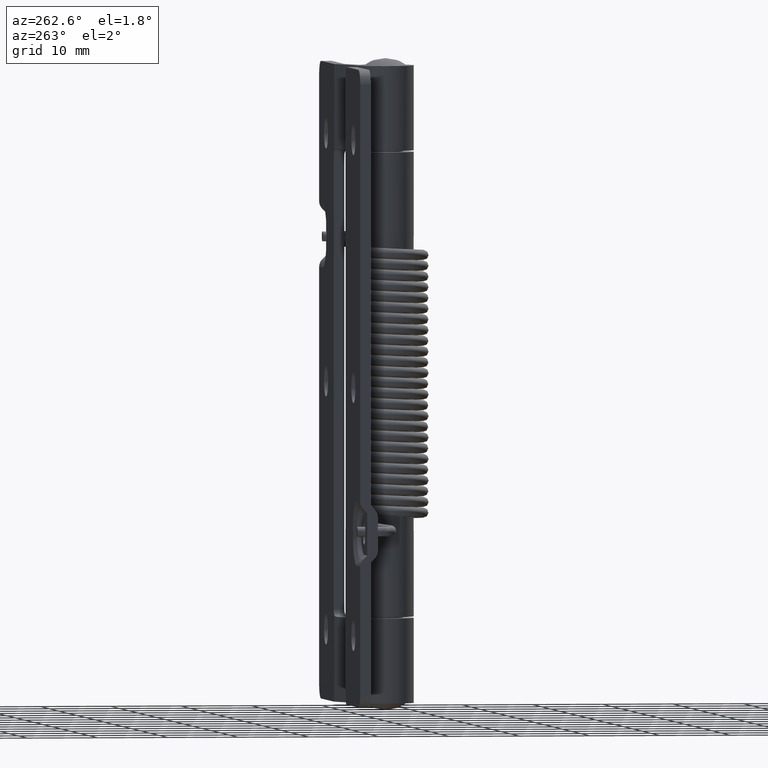
[diagram: clean part render]
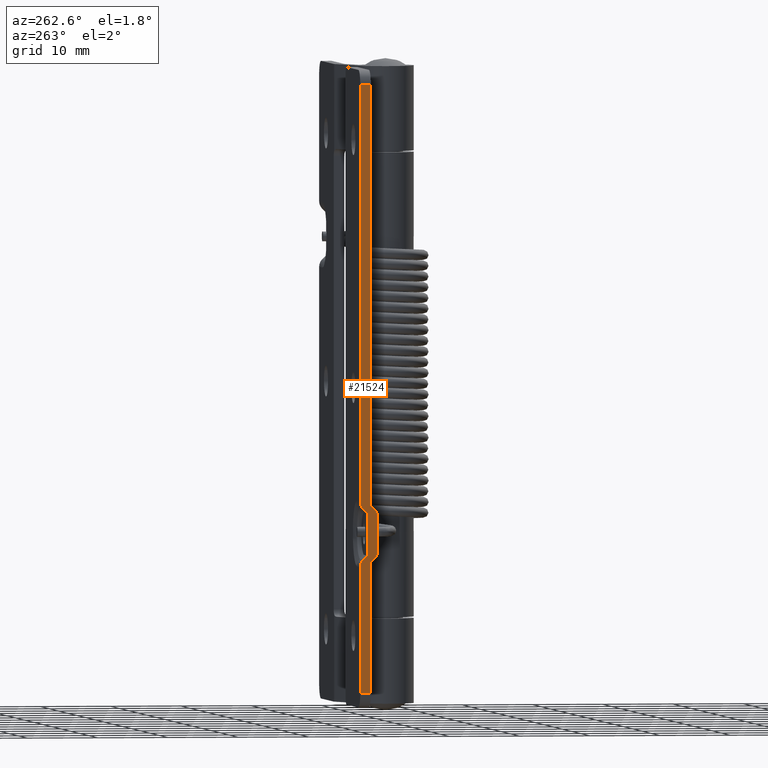
[diagram: same view with one face highlighted and labeled with its STEP entity id]
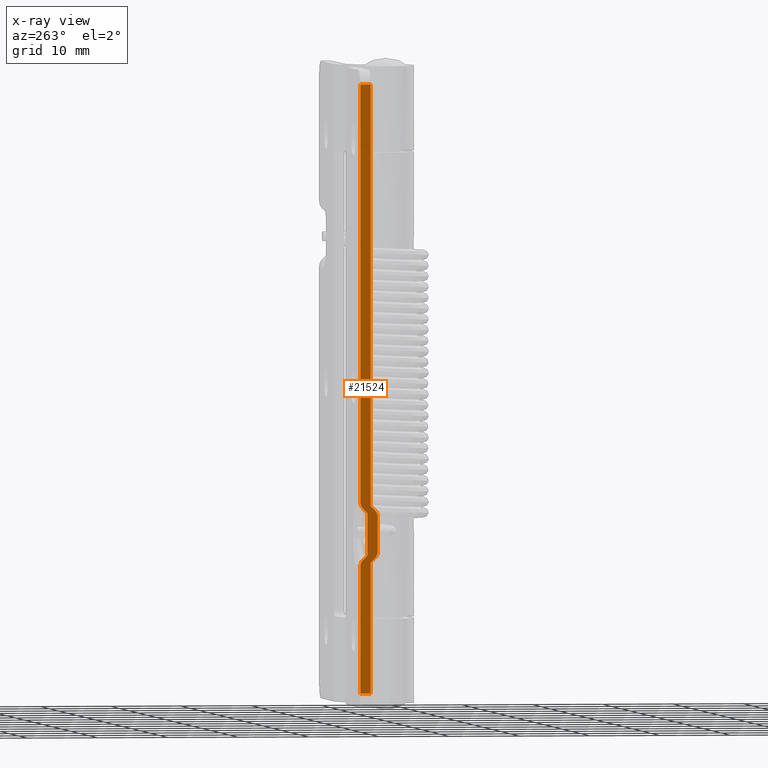
[diagram: x-ray of the same camera — body ghosted, the highlighted face saturated]
A machine part, auxiliary view. The second image highlights one B-rep face of the part: STEP entity #21524.
The next image is the same camera in x-ray: the body ghosted, the highlighted face saturated — about 0% of this face is hidden behind the body in this view.
In plain terms, the highlighted face is a freeform B-spline surface patch.
Its self-contained STEP definition (entity closure, byte-faithful):
#20238=CARTESIAN_POINT('',(-22.499999999999599,5.0,88.0));
#20239=VERTEX_POINT('',#20238);
#20240=CARTESIAN_POINT('',(-22.499999999999599,5.0,28.500000000000401));
#20241=VERTEX_POINT('',#20240);
#20242=CARTESIAN_POINT('',(-22.499999999999599,5.0,88.0));
#20243=CARTESIAN_POINT('',(-22.499999999999599,5.0,28.500000000000401));
#20244=QUASI_UNIFORM_CURVE('',1,(#20242,#20243),.UNSPECIFIED.,.F.,.U.);
#20245=EDGE_CURVE('',#20239,#20241,#20244,.T.);
#20286=CARTESIAN_POINT('',(-22.499999999982549,5.0,20.500000000001101));
#20287=VERTEX_POINT('',#20286);
#20293=CARTESIAN_POINT('',(-22.499999999999599,5.0,2.0));
#20294=VERTEX_POINT('',#20293);
#20295=CARTESIAN_POINT('',(-22.499999999982549,5.0,20.500000000001101));
#20296=CARTESIAN_POINT('',(-22.499999999999599,5.0,2.0));
#20297=QUASI_UNIFORM_CURVE('',1,(#20295,#20296),.UNSPECIFIED.,.F.,.U.);
#20298=EDGE_CURVE('',#20287,#20294,#20297,.T.);
#20436=CARTESIAN_POINT('',(-22.499999999999599,6.500000000000000,19.878679656441399));
#20437=VERTEX_POINT('',#20436);
#20443=CARTESIAN_POINT('',(-22.499999999999599,6.060660171779860,20.939339828221350));
#20444=VERTEX_POINT('',#20443);
#20445=CARTESIAN_POINT('',(-22.499999999999599,6.060660171779860,20.939339828221350));
#20446=CARTESIAN_POINT('',(-22.499999999999599,6.164836928495435,20.835245882613439));
#20447=CARTESIAN_POINT('',(-22.499999999999591,6.327336598414628,20.615990362726219));
#20448=CARTESIAN_POINT('',(-22.499999999999609,6.469714001137285,20.246823225250239));
#20449=CARTESIAN_POINT('',(-22.499999999999599,6.500031804187120,20.001404309600641));
#20450=CARTESIAN_POINT('',(-22.499999999999599,6.500000000000000,19.878679656441399));
#20451=B_SPLINE_CURVE_WITH_KNOTS('',3,(#20445,#20446,#20447,#20448,#20449,#20450),.UNSPECIFIED.,.F.,.U.,(4,1,1,4),(0.000000050564580,0.441797869178600,0.809957212502705,1.178126807976310),.UNSPECIFIED.);
#20452=EDGE_CURVE('',#20444,#20437,#20451,.T.);
#20570=CARTESIAN_POINT('',(-22.499999999999599,6.500000000000000,29.121320343558651));
#20571=VERTEX_POINT('',#20570);
#20572=CARTESIAN_POINT('',(-22.499999999999599,6.060660171779860,28.060660171778800));
#20573=VERTEX_POINT('',#20572);
#20574=CARTESIAN_POINT('',(-22.499999999999599,6.500000000000000,29.121320343558651));
#20575=CARTESIAN_POINT('',(-22.499999999999570,6.500140893072416,28.937219311553878));
#20576=CARTESIAN_POINT('',(-22.499999999999659,6.426779287355892,28.544647558319920));
#20577=CARTESIAN_POINT('',(-22.499999999999570,6.208387910986555,28.208015990222151));
#20578=CARTESIAN_POINT('',(-22.499999999999599,6.060660171779860,28.060660171778800));
#20579=B_SPLINE_CURVE_WITH_KNOTS('',3,(#20574,#20575,#20576,#20577,#20578),.UNSPECIFIED.,.F.,.U.,(4,1,4),(0.000000050564466,0.552260114727602,1.178126807976221),.UNSPECIFIED.);
#20580=EDGE_CURVE('',#20571,#20573,#20579,.T.);
#20610=CARTESIAN_POINT('',(-22.499999999999599,4.439339828220220,21.060660171780949));
#20611=VERTEX_POINT('',#20610);
#20612=CARTESIAN_POINT('',(-22.499999999982549,4.000000000000116,22.121320343560701));
#20613=VERTEX_POINT('',#20612);
#20614=CARTESIAN_POINT('',(-22.499999999999599,4.439339828220220,21.060660171780949));
#20615=CARTESIAN_POINT('',(-22.500000000001911,4.326481520392703,21.173419960675741));
#20616=CARTESIAN_POINT('',(-22.500000000003229,4.093553253310001,21.495835200638702));
#20617=CARTESIAN_POINT('',(-22.499999999992351,3.999553333852331,21.888059440800060));
#20618=CARTESIAN_POINT('',(-22.499999999982549,4.000000000000116,22.121320343560701));
#20619=B_SPLINE_CURVE_WITH_KNOTS('',3,(#20614,#20615,#20616,#20617,#20618),.UNSPECIFIED.,.F.,.U.,(4,1,4),(0.000000050565509,0.478623091477944,1.178126807976106),.UNSPECIFIED.);
#20620=EDGE_CURVE('',#20611,#20613,#20619,.T.);
#20754=CARTESIAN_POINT('',(-22.499999999982499,4.000000000000116,26.878679656439399));
#20755=VERTEX_POINT('',#20754);
#20756=CARTESIAN_POINT('',(-22.499999999999599,4.439339828220220,27.939339828219200));
#20757=VERTEX_POINT('',#20756);
#20758=CARTESIAN_POINT('',(-22.499999999982499,4.000000000000116,26.878679656439399));
#20759=CARTESIAN_POINT('',(-22.499999999988209,3.999726251335322,27.087338010095511));
#20760=CARTESIAN_POINT('',(-22.499999999996799,4.083358231714475,27.479790419408982));
#20761=CARTESIAN_POINT('',(-22.499999999999581,4.309056879014838,27.809261966360410));
#20762=CARTESIAN_POINT('',(-22.499999999999599,4.439339828220220,27.939339828219200));
#20763=B_SPLINE_CURVE_WITH_KNOTS('',3,(#20758,#20759,#20760,#20761,#20762),.UNSPECIFIED.,.F.,.U.,(4,1,4),(0.000000050564866,0.625866743813255,1.178126807976149),.UNSPECIFIED.);
#20764=EDGE_CURVE('',#20755,#20757,#20763,.T.);
#20785=CARTESIAN_POINT('',(-22.499999999982499,5.500000000000000,27.499999999999002));
#20786=VERTEX_POINT('',#20785);
#20787=CARTESIAN_POINT('',(-22.499999999999599,6.060660171779860,28.060660171778800));
#20788=CARTESIAN_POINT('',(-22.499999999982499,5.500000000000000,27.499999999999002));
#20789=QUASI_UNIFORM_CURVE('',1,(#20787,#20788),.UNSPECIFIED.,.F.,.U.);
#20790=EDGE_CURVE('',#20573,#20786,#20789,.T.);
#20873=CARTESIAN_POINT('',(-22.499999999982549,5.500000000000000,21.500000000001101));
#20874=VERTEX_POINT('',#20873);
#20875=CARTESIAN_POINT('',(-22.499999999982549,5.500000000000000,21.500000000001101));
#20876=CARTESIAN_POINT('',(-22.499999999999599,6.060660171779860,20.939339828221350));
#20877=QUASI_UNIFORM_CURVE('',1,(#20875,#20876),.UNSPECIFIED.,.F.,.U.);
#20878=EDGE_CURVE('',#20874,#20444,#20877,.T.);
#20893=CARTESIAN_POINT('',(-22.499999999982549,5.500000000000000,21.500000000001101));
#20894=CARTESIAN_POINT('',(-22.499999999982499,5.500000000000000,27.499999999999002));
#20895=QUASI_UNIFORM_CURVE('',1,(#20893,#20894),.UNSPECIFIED.,.F.,.U.);
#20896=EDGE_CURVE('',#20874,#20786,#20895,.T.);
#20924=CARTESIAN_POINT('',(-22.499999999982549,5.0,20.500000000001101));
#20925=CARTESIAN_POINT('',(-22.499999999999599,4.439339828220220,21.060660171780949));
#20926=QUASI_UNIFORM_CURVE('',1,(#20924,#20925),.UNSPECIFIED.,.F.,.U.);
#20927=EDGE_CURVE('',#20287,#20611,#20926,.T.);
#20969=CARTESIAN_POINT('',(-22.499999999999599,4.439339828220220,27.939339828219200));
#20970=CARTESIAN_POINT('',(-22.499999999999599,5.0,28.500000000000401));
#20971=QUASI_UNIFORM_CURVE('',1,(#20969,#20970),.UNSPECIFIED.,.F.,.U.);
#20972=EDGE_CURVE('',#20757,#20241,#20971,.T.);
#20985=CARTESIAN_POINT('',(-22.499999999982549,4.000000000000116,22.121320343560701));
#20986=CARTESIAN_POINT('',(-22.499999999982499,4.000000000000116,26.878679656439399));
#20987=QUASI_UNIFORM_CURVE('',1,(#20985,#20986),.UNSPECIFIED.,.F.,.U.);
#20988=EDGE_CURVE('',#20613,#20755,#20987,.T.);
#21291=CARTESIAN_POINT('',(-22.499999999999599,6.500000000000000,2.0));
#21292=VERTEX_POINT('',#21291);
#21311=CARTESIAN_POINT('',(-22.499999999999599,6.500000000000000,2.0));
#21312=CARTESIAN_POINT('',(-22.499999999999599,5.0,2.0));
#21313=QUASI_UNIFORM_CURVE('',1,(#21311,#21312),.UNSPECIFIED.,.F.,.U.);
#21314=EDGE_CURVE('',#21292,#20294,#21313,.T.);
#21333=CARTESIAN_POINT('',(-22.499999999999599,6.500000000000000,88.0));
#21334=VERTEX_POINT('',#21333);
#21349=CARTESIAN_POINT('',(-22.499999999999599,5.0,88.0));
#21350=CARTESIAN_POINT('',(-22.499999999999599,6.500000000000000,88.0));
#21351=QUASI_UNIFORM_CURVE('',1,(#21349,#21350),.UNSPECIFIED.,.F.,.U.);
#21352=EDGE_CURVE('',#20239,#21334,#21351,.T.);
#21493=CARTESIAN_POINT('',(-22.499999999999599,3.875125004845606,92.295699833315311));
#21494=CARTESIAN_POINT('',(-22.499999999999599,3.875125004845606,-2.295702140015067));
#21495=CARTESIAN_POINT('',(-22.499999999999599,6.624875062209735,92.295699833315297));
#21496=CARTESIAN_POINT('',(-22.499999999999599,6.624875062209735,-2.295702140015067));
#21497=B_SPLINE_SURFACE_WITH_KNOTS('',1,1,((#21493,#21495),(#21494,#21496)),.UNSPECIFIED.,.F.,.F.,.U.,(2,2),(2,2),(0.0,94.591401973330377),(0.0,2.749750057364129),.UNSPECIFIED.);
#21498=ORIENTED_EDGE('',*,*,#20878,.T.);
#21499=ORIENTED_EDGE('',*,*,#20452,.T.);
#21500=CARTESIAN_POINT('',(-22.499999999999599,6.500000000000000,19.878679656441399));
#21501=CARTESIAN_POINT('',(-22.499999999999599,6.500000000000000,2.0));
#21502=QUASI_UNIFORM_CURVE('',1,(#21500,#21501),.UNSPECIFIED.,.F.,.U.);
#21503=EDGE_CURVE('',#20437,#21292,#21502,.T.);
#21504=ORIENTED_EDGE('',*,*,#21503,.T.);
#21505=ORIENTED_EDGE('',*,*,#21314,.T.);
#21506=ORIENTED_EDGE('',*,*,#20298,.F.);
#21507=ORIENTED_EDGE('',*,*,#20927,.T.);
#21508=ORIENTED_EDGE('',*,*,#20620,.T.);
#21509=ORIENTED_EDGE('',*,*,#20988,.T.);
#21510=ORIENTED_EDGE('',*,*,#20764,.T.);
#21511=ORIENTED_EDGE('',*,*,#20972,.T.);
#21512=ORIENTED_EDGE('',*,*,#20245,.F.);
#21513=ORIENTED_EDGE('',*,*,#21352,.T.);
#21514=CARTESIAN_POINT('',(-22.499999999999599,6.500000000000000,88.0));
#21515=CARTESIAN_POINT('',(-22.499999999999599,6.500000000000000,29.121320343558651));
#21516=QUASI_UNIFORM_CURVE('',1,(#21514,#21515),.UNSPECIFIED.,.F.,.U.);
#21517=EDGE_CURVE('',#21334,#20571,#21516,.T.);
#21518=ORIENTED_EDGE('',*,*,#21517,.T.);
#21519=ORIENTED_EDGE('',*,*,#20580,.T.);
#21520=ORIENTED_EDGE('',*,*,#20790,.T.);
#21521=ORIENTED_EDGE('',*,*,#20896,.F.);
#21522=EDGE_LOOP('',(#21498,#21499,#21504,#21505,#21506,#21507,#21508,#21509,#21510,#21511,#21512,#21513,#21518,#21519,#21520,#21521));
#21523=FACE_OUTER_BOUND('',#21522,.T.);
#21524=ADVANCED_FACE('',(#21523),#21497,.F.);